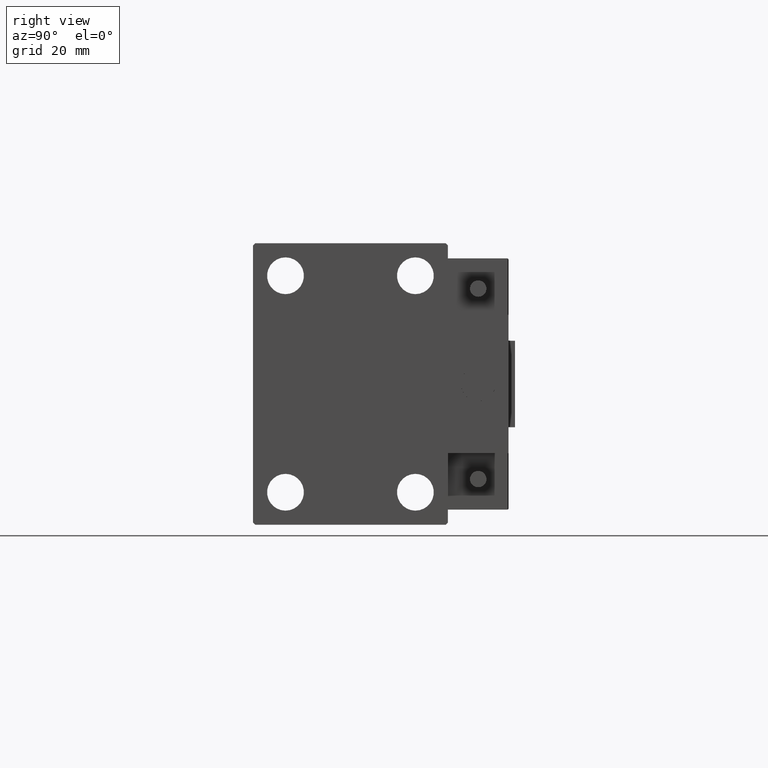
[diagram: clean part render]
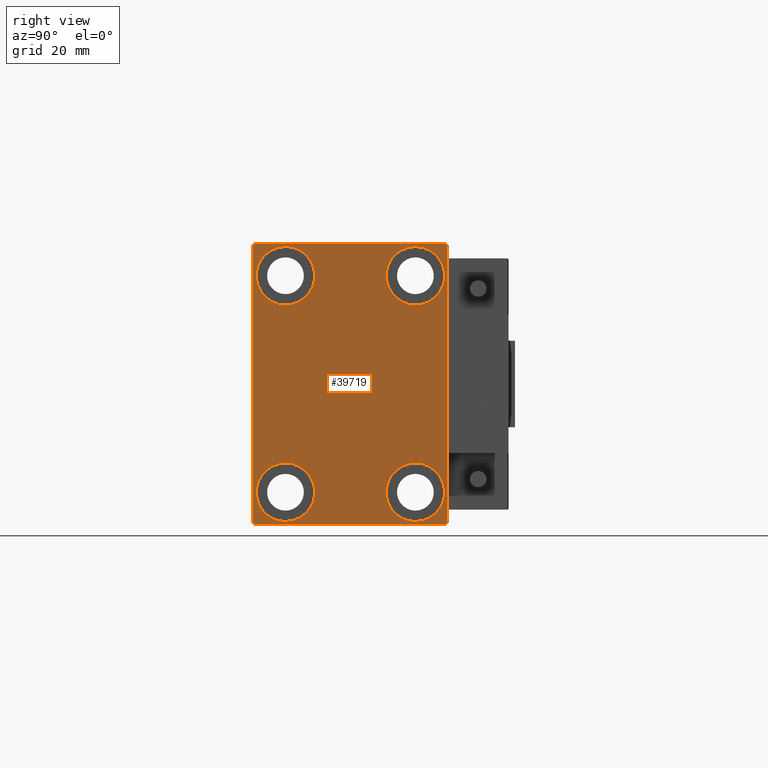
[diagram: same view with one face highlighted and labeled with its STEP entity id]
A machine part, right view. The second image highlights one B-rep face of the part: STEP entity #39719.
In plain terms, the highlighted planar face has unit normal (1, 0, 0).
Its self-contained STEP definition (entity closure, byte-faithful):
#551 = CARTESIAN_POINT ( 'NONE',  ( 70.00000000000000000, -14.99999999999999645, 25.00000000000000000 ) ) ;
#840 = CARTESIAN_POINT ( 'NONE',  ( 70.00000000000000000, -22.50000000000000711, 31.99999999999999289 ) ) ;
#909 = ORIENTED_EDGE ( 'NONE', *, *, #39082, .T. ) ;
#1053 = AXIS2_PLACEMENT_3D ( 'NONE', #50018, #31418, #3944 ) ;
#1058 = VECTOR ( 'NONE', #32936, 1000.000000000000000 ) ;
#1750 = CIRCLE ( 'NONE', #34219, 6.749999999999999112 ) ;
#1988 = CARTESIAN_POINT ( 'NONE',  ( 70.00000000000000000, 22.50000000000000000, -32.00000000000002132 ) ) ;
#2514 = DIRECTION ( 'NONE',  ( -1.000000000000000000, -0.000000000000000000, -0.000000000000000000 ) ) ;
#2621 = CIRCLE ( 'NONE', #18069, 6.749999999999999112 ) ;
#2906 = CIRCLE ( 'NONE', #19142, 6.749999999999999112 ) ;
#2948 = ORIENTED_EDGE ( 'NONE', *, *, #26812, .T. ) ;
#3671 = DIRECTION ( 'NONE',  ( -0.000000000000000000, 0.7071067811865378028, -0.7071067811865573427 ) ) ;
#3944 = DIRECTION ( 'NONE',  ( 0.000000000000000000, 0.000000000000000000, 1.000000000000000000 ) ) ;
#4488 = AXIS2_PLACEMENT_3D ( 'NONE', #551, #43812, #12013 ) ;
#4693 = CARTESIAN_POINT ( 'NONE',  ( 70.00000000000000000, -22.00000000000002132, -32.50000000000000711 ) ) ;
#5017 = FACE_OUTER_BOUND ( 'NONE', #27346, .T. ) ;
#5391 = AXIS2_PLACEMENT_3D ( 'NONE', #33654, #17644, #49188 ) ;
#5972 = CARTESIAN_POINT ( 'NONE',  ( 70.00000000000000000, 15.00000000000000355, 25.00000000000000000 ) ) ;
#6459 = FACE_BOUND ( 'NONE', #10640, .T. ) ;
#7500 = EDGE_LOOP ( 'NONE', ( #27190, #47067 ) ) ;
#7547 = CIRCLE ( 'NONE', #1053, 6.749999999999999112 ) ;
#10640 = EDGE_LOOP ( 'NONE', ( #19314, #46005 ) ) ;
#10954 = CARTESIAN_POINT ( 'NONE',  ( 70.00000000000000000, -14.99999999999999645, 25.00000000000000000 ) ) ;
#11554 = AXIS2_PLACEMENT_3D ( 'NONE', #10954, #14290, #30046 ) ;
#12013 = DIRECTION ( 'NONE',  ( 0.000000000000000000, 0.000000000000000000, 1.000000000000000000 ) ) ;
#12160 = DIRECTION ( 'NONE',  ( -1.000000000000000000, -0.000000000000000000, -0.000000000000000000 ) ) ;
#12707 = ORIENTED_EDGE ( 'NONE', *, *, #28251, .T. ) ;
#12915 = DIRECTION ( 'NONE',  ( 1.000000000000000000, 0.000000000000000000, 0.000000000000000000 ) ) ;
#13646 = VERTEX_POINT ( 'NONE', #47813 ) ;
#13923 = CARTESIAN_POINT ( 'NONE',  ( 70.00000000000000000, 27.25000000000032685, -27.24999999999957012 ) ) ;
#13937 = VERTEX_POINT ( 'NONE', #42905 ) ;
#14290 = DIRECTION ( 'NONE',  ( -1.000000000000000000, -0.000000000000000000, -0.000000000000000000 ) ) ;
#14307 = VERTEX_POINT ( 'NONE', #32650 ) ;
#14316 = CARTESIAN_POINT ( 'NONE',  ( 70.00000000000000000, 22.49999999999999289, 32.50000000000000000 ) ) ;
#14886 = CARTESIAN_POINT ( 'NONE',  ( 70.00000000000000000, -27.25000000000032330, -27.24999999999957012 ) ) ;
#14890 = AXIS2_PLACEMENT_3D ( 'NONE', #24870, #12915, #28189 ) ;
#15167 = CARTESIAN_POINT ( 'NONE',  ( 70.00000000000000000, -21.99999999999999289, 32.49999999999999289 ) ) ;
#15820 = VERTEX_POINT ( 'NONE', #840 ) ;
#15920 = CARTESIAN_POINT ( 'NONE',  ( 70.00000000000000000, 27.25000000000014921, 27.24999999999976907 ) ) ;
#15989 = EDGE_CURVE ( 'NONE', #35150, #13937, #1750, .T. ) ;
#17432 = CARTESIAN_POINT ( 'NONE',  ( 70.00000000000000000, -22.50000000000000711, 32.49999999999999289 ) ) ;
#17482 = VECTOR ( 'NONE', #3671, 1000.000000000000000 ) ;
#17644 = DIRECTION ( 'NONE',  ( -1.000000000000000000, -0.000000000000000000, -0.000000000000000000 ) ) ;
#17835 = EDGE_CURVE ( 'NONE', #22588, #42533, #44834, .T. ) ;
#17942 = DIRECTION ( 'NONE',  ( 0.000000000000000000, 0.000000000000000000, 1.000000000000000000 ) ) ;
#18069 = AXIS2_PLACEMENT_3D ( 'NONE', #18535, #2514, #41433 ) ;
#18150 = EDGE_CURVE ( 'NONE', #32222, #34802, #2621, .T. ) ;
#18535 = CARTESIAN_POINT ( 'NONE',  ( 70.00000000000000000, 15.00000000000000355, 25.00000000000000000 ) ) ;
#18884 = LINE ( 'NONE', #42530, #22994 ) ;
#19001 = EDGE_CURVE ( 'NONE', #13937, #35150, #42456, .T. ) ;
#19142 = AXIS2_PLACEMENT_3D ( 'NONE', #5972, #44902, #17942 ) ;
#19154 = DIRECTION ( 'NONE',  ( 0.000000000000000000, 1.000000000000000000, 0.000000000000000000 ) ) ;
#19314 = ORIENTED_EDGE ( 'NONE', *, *, #15989, .T. ) ;
#19627 = CARTESIAN_POINT ( 'NONE',  ( 70.00000000000000000, 22.50000000000000000, -32.50000000000000711 ) ) ;
#20530 = AXIS2_PLACEMENT_3D ( 'NONE', #47274, #12160, #27937 ) ;
#20828 = EDGE_CURVE ( 'NONE', #15820, #28943, #40820, .T. ) ;
#21301 = DIRECTION ( 'NONE',  ( -0.000000000000000000, 0.7071067811865376918, 0.7071067811865573427 ) ) ;
#22192 = DIRECTION ( 'NONE',  ( 0.000000000000000000, -1.000000000000000000, -1.541976423090495387E-16 ) ) ;
#22442 = CARTESIAN_POINT ( 'NONE',  ( 70.00000000000000000, -15.00000000000000355, -25.00000000000000000 ) ) ;
#22588 = VERTEX_POINT ( 'NONE', #39853 ) ;
#22725 = LINE ( 'NONE', #41310, #26218 ) ;
#22994 = VECTOR ( 'NONE', #50185, 1000.000000000000114 ) ;
#23076 = EDGE_CURVE ( 'NONE', #28675, #15820, #18884, .T. ) ;
#23275 = CIRCLE ( 'NONE', #5391, 6.749999999999999112 ) ;
#23627 = CARTESIAN_POINT ( 'NONE',  ( 70.00000000000000000, -14.99999999999999645, 31.75000000000000000 ) ) ;
#23633 = EDGE_CURVE ( 'NONE', #34592, #35011, #7547, .T. ) ;
#23688 = LINE ( 'NONE', #19627, #42601 ) ;
#24750 = CARTESIAN_POINT ( 'NONE',  ( 70.00000000000000000, 15.00000000000000355, 18.25000000000000355 ) ) ;
#24870 = CARTESIAN_POINT ( 'NONE',  ( 70.00000000000000000, 0.000000000000000000, 0.000000000000000000 ) ) ;
#25769 = DIRECTION ( 'NONE',  ( -1.000000000000000000, -0.000000000000000000, -0.000000000000000000 ) ) ;
#26218 = VECTOR ( 'NONE', #19154, 1000.000000000000000 ) ;
#26575 = EDGE_CURVE ( 'NONE', #13646, #28675, #41017, .T. ) ;
#26812 = EDGE_CURVE ( 'NONE', #44214, #32858, #23688, .T. ) ;
#27113 = LINE ( 'NONE', #15920, #32966 ) ;
#27172 = VECTOR ( 'NONE', #22192, 1000.000000000000000 ) ;
#27190 = ORIENTED_EDGE ( 'NONE', *, *, #17835, .T. ) ;
#27346 = EDGE_LOOP ( 'NONE', ( #47898, #49241, #30414, #12707, #909, #28788, #2948, #44095 ) ) ;
#27937 = DIRECTION ( 'NONE',  ( 0.000000000000000000, 0.000000000000000000, 1.000000000000000000 ) ) ;
#28189 = DIRECTION ( 'NONE',  ( 0.000000000000000000, 0.000000000000000000, -1.000000000000000000 ) ) ;
#28251 = EDGE_CURVE ( 'NONE', #28943, #38796, #46176, .T. ) ;
#28675 = VERTEX_POINT ( 'NONE', #15167 ) ;
#28788 = ORIENTED_EDGE ( 'NONE', *, *, #41383, .T. ) ;
#28859 = CARTESIAN_POINT ( 'NONE',  ( 70.00000000000000000, 15.00000000000000355, 31.75000000000000000 ) ) ;
#28943 = VERTEX_POINT ( 'NONE', #43383 ) ;
#29482 = ORIENTED_EDGE ( 'NONE', *, *, #30174, .T. ) ;
#29584 = EDGE_LOOP ( 'NONE', ( #48060, #39290 ) ) ;
#30046 = DIRECTION ( 'NONE',  ( 0.000000000000000000, 0.000000000000000000, 1.000000000000000000 ) ) ;
#30174 = EDGE_CURVE ( 'NONE', #34802, #32222, #2906, .T. ) ;
#30414 = ORIENTED_EDGE ( 'NONE', *, *, #20828, .T. ) ;
#30815 = CARTESIAN_POINT ( 'NONE',  ( 70.00000000000000000, 14.99999999999999645, -18.25000000000000355 ) ) ;
#30925 = DIRECTION ( 'NONE',  ( -0.000000000000000000, -0.7071067811865425767, 0.7071067811865525687 ) ) ;
#31328 = CIRCLE ( 'NONE', #4488, 6.749999999999999112 ) ;
#31418 = DIRECTION ( 'NONE',  ( -1.000000000000000000, -0.000000000000000000, -0.000000000000000000 ) ) ;
#32222 = VERTEX_POINT ( 'NONE', #28859 ) ;
#32251 = FACE_BOUND ( 'NONE', #45446, .T. ) ;
#32497 = PLANE ( 'NONE',  #14890 ) ;
#32650 = CARTESIAN_POINT ( 'NONE',  ( 70.00000000000000000, 22.00000000000001421, -32.50000000000000711 ) ) ;
#32858 = VERTEX_POINT ( 'NONE', #36118 ) ;
#32936 = DIRECTION ( 'NONE',  ( 0.000000000000000000, 0.000000000000000000, -1.000000000000000000 ) ) ;
#32966 = VECTOR ( 'NONE', #30925, 999.9999999999998863 ) ;
#33638 = DIRECTION ( 'NONE',  ( 0.000000000000000000, 0.000000000000000000, 1.000000000000000000 ) ) ;
#33654 = CARTESIAN_POINT ( 'NONE',  ( 70.00000000000000000, 14.99999999999999645, -25.00000000000000000 ) ) ;
#34219 = AXIS2_PLACEMENT_3D ( 'NONE', #22442, #25769, #33638 ) ;
#34422 = CARTESIAN_POINT ( 'NONE',  ( 70.00000000000000000, -15.00000000000000355, -31.75000000000000000 ) ) ;
#34592 = VERTEX_POINT ( 'NONE', #45151 ) ;
#34802 = VERTEX_POINT ( 'NONE', #24750 ) ;
#35011 = VERTEX_POINT ( 'NONE', #30815 ) ;
#35150 = VERTEX_POINT ( 'NONE', #34422 ) ;
#36118 = CARTESIAN_POINT ( 'NONE',  ( 70.00000000000000000, 22.49999999999999289, 31.99999999999999289 ) ) ;
#38796 = VERTEX_POINT ( 'NONE', #4693 ) ;
#39082 = EDGE_CURVE ( 'NONE', #38796, #14307, #22725, .T. ) ;
#39290 = ORIENTED_EDGE ( 'NONE', *, *, #46838, .T. ) ;
#39719 = ADVANCED_FACE ( 'NONE', ( #50343, #48033, #32251, #6459, #5017 ), #32497, .T. ) ;
#39853 = CARTESIAN_POINT ( 'NONE',  ( 70.00000000000000000, -14.99999999999999645, 18.25000000000000355 ) ) ;
#40820 = LINE ( 'NONE', #17432, #1058 ) ;
#41017 = LINE ( 'NONE', #14316, #27172 ) ;
#41310 = CARTESIAN_POINT ( 'NONE',  ( 70.00000000000000000, -22.50000000000000711, -32.50000000000000711 ) ) ;
#41383 = EDGE_CURVE ( 'NONE', #14307, #44214, #48790, .T. ) ;
#41433 = DIRECTION ( 'NONE',  ( 0.000000000000000000, 0.000000000000000000, 1.000000000000000000 ) ) ;
#41630 = ORIENTED_EDGE ( 'NONE', *, *, #18150, .T. ) ;
#42456 = CIRCLE ( 'NONE', #20530, 6.749999999999999112 ) ;
#42530 = CARTESIAN_POINT ( 'NONE',  ( 70.00000000000000000, -27.25000000000000000, 27.25000000000000000 ) ) ;
#42533 = VERTEX_POINT ( 'NONE', #23627 ) ;
#42601 = VECTOR ( 'NONE', #43529, 1000.000000000000000 ) ;
#42905 = CARTESIAN_POINT ( 'NONE',  ( 70.00000000000000000, -15.00000000000000355, -18.25000000000000355 ) ) ;
#43383 = CARTESIAN_POINT ( 'NONE',  ( 70.00000000000000000, -22.50000000000000711, -32.00000000000000711 ) ) ;
#43529 = DIRECTION ( 'NONE',  ( 0.000000000000000000, -1.067522139062650425E-16, 1.000000000000000000 ) ) ;
#43812 = DIRECTION ( 'NONE',  ( -1.000000000000000000, -0.000000000000000000, -0.000000000000000000 ) ) ;
#44095 = ORIENTED_EDGE ( 'NONE', *, *, #46395, .T. ) ;
#44214 = VERTEX_POINT ( 'NONE', #1988 ) ;
#44759 = EDGE_CURVE ( 'NONE', #42533, #22588, #31328, .T. ) ;
#44834 = CIRCLE ( 'NONE', #11554, 6.749999999999999112 ) ;
#44902 = DIRECTION ( 'NONE',  ( -1.000000000000000000, -0.000000000000000000, -0.000000000000000000 ) ) ;
#45151 = CARTESIAN_POINT ( 'NONE',  ( 70.00000000000000000, 14.99999999999999645, -31.75000000000000000 ) ) ;
#45446 = EDGE_LOOP ( 'NONE', ( #29482, #41630 ) ) ;
#46005 = ORIENTED_EDGE ( 'NONE', *, *, #19001, .T. ) ;
#46176 = LINE ( 'NONE', #14886, #17482 ) ;
#46395 = EDGE_CURVE ( 'NONE', #32858, #13646, #27113, .T. ) ;
#46634 = VECTOR ( 'NONE', #21301, 1000.000000000000114 ) ;
#46838 = EDGE_CURVE ( 'NONE', #35011, #34592, #23275, .T. ) ;
#47067 = ORIENTED_EDGE ( 'NONE', *, *, #44759, .T. ) ;
#47274 = CARTESIAN_POINT ( 'NONE',  ( 70.00000000000000000, -15.00000000000000355, -25.00000000000000000 ) ) ;
#47813 = CARTESIAN_POINT ( 'NONE',  ( 70.00000000000000000, 21.99999999999999289, 32.50000000000000000 ) ) ;
#47898 = ORIENTED_EDGE ( 'NONE', *, *, #26575, .T. ) ;
#48033 = FACE_BOUND ( 'NONE', #7500, .T. ) ;
#48060 = ORIENTED_EDGE ( 'NONE', *, *, #23633, .T. ) ;
#48790 = LINE ( 'NONE', #13923, #46634 ) ;
#49188 = DIRECTION ( 'NONE',  ( 0.000000000000000000, 0.000000000000000000, 1.000000000000000000 ) ) ;
#49241 = ORIENTED_EDGE ( 'NONE', *, *, #23076, .T. ) ;
#50018 = CARTESIAN_POINT ( 'NONE',  ( 70.00000000000000000, 14.99999999999999645, -25.00000000000000000 ) ) ;
#50185 = DIRECTION ( 'NONE',  ( 0.000000000000000000, -0.7071067811865474617, -0.7071067811865474617 ) ) ;
#50343 = FACE_BOUND ( 'NONE', #29584, .T. ) ;